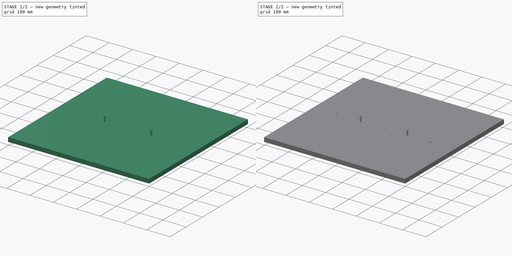
[diagram: build sequence overview — one tinted view per stage of 2, left to right]
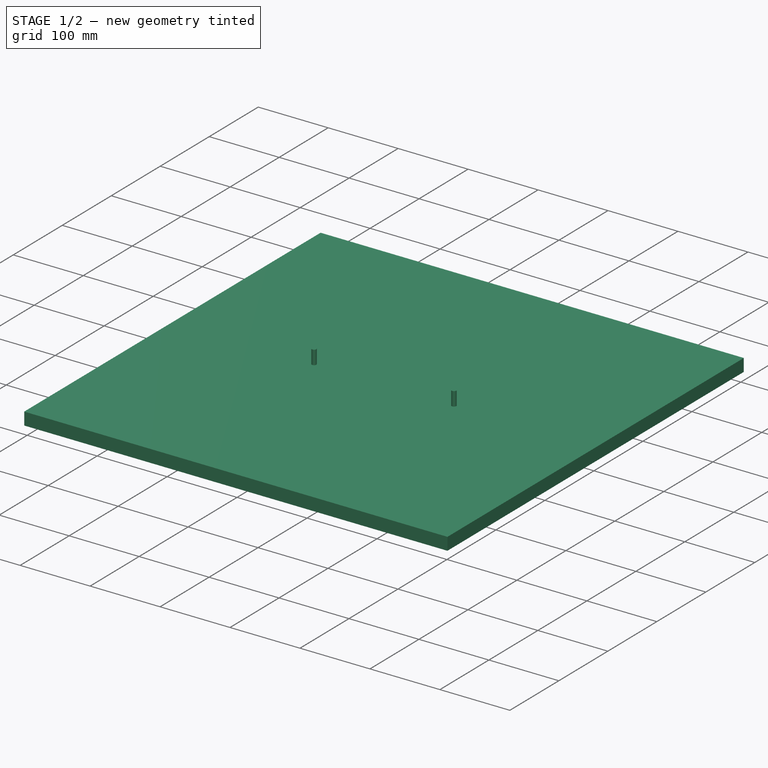
[diagram: stage 1 of 2 — iso view after this stage's code; geometry added in this stage tinted green]
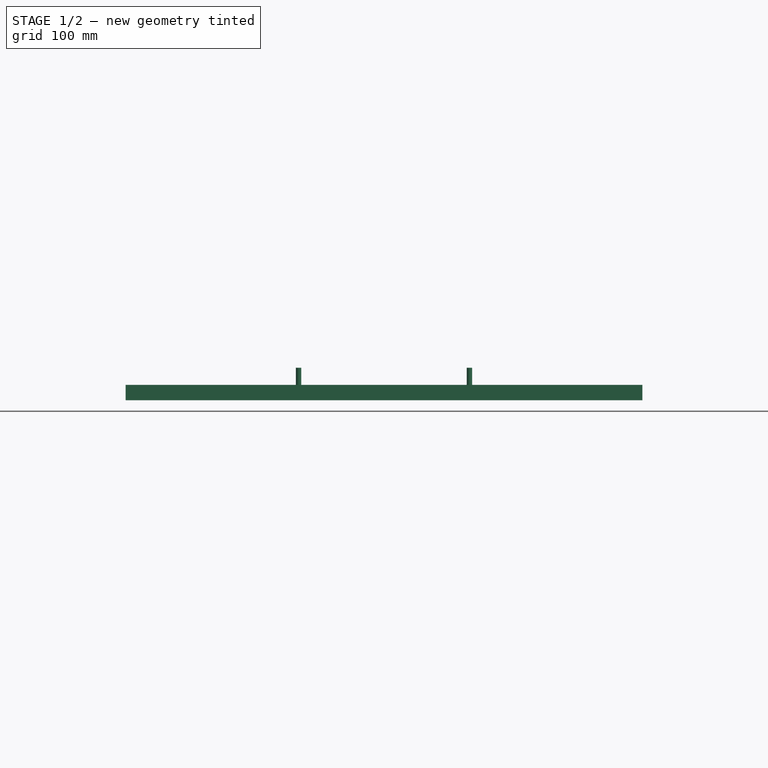
[diagram: stage 1 of 2 — front view after this stage's code; geometry added in this stage tinted green]
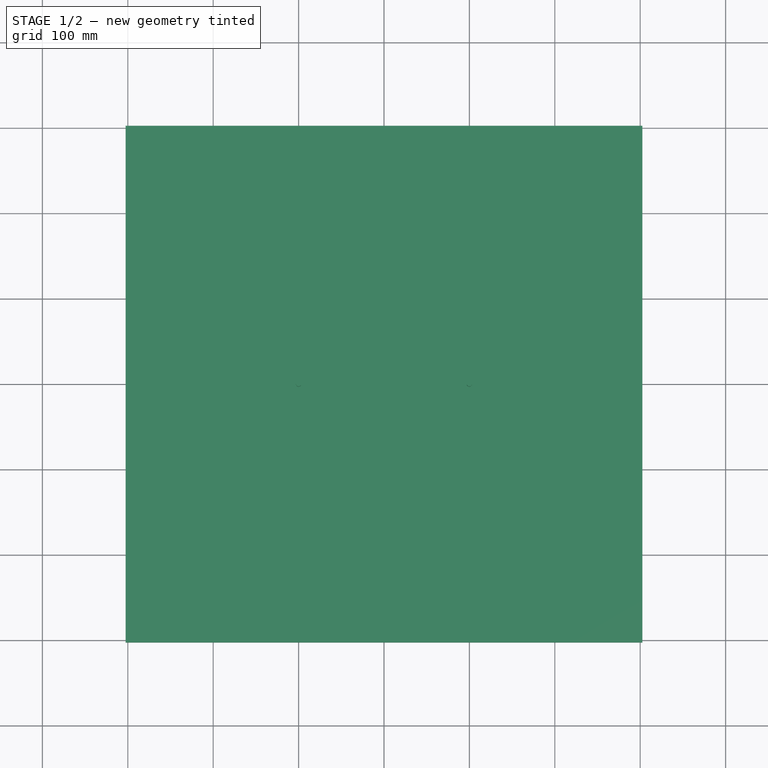
[diagram: stage 1 of 2 — top view after this stage's code; geometry added in this stage tinted green]
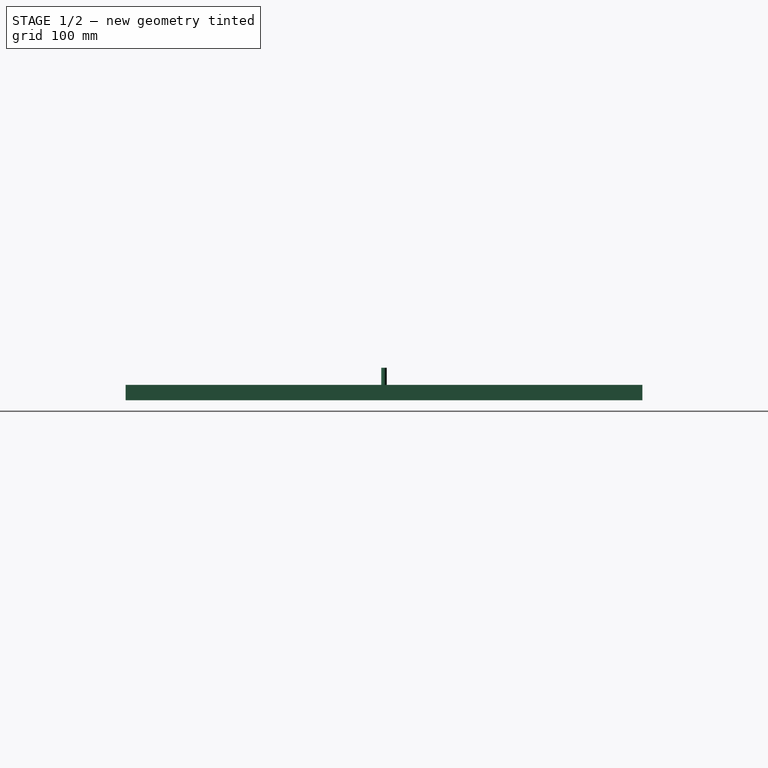
[diagram: stage 1 of 2 — right view after this stage's code; geometry added in this stage tinted green]
FCSTD DOCUMENT  (FreeCAD 1.1R40077 (Git))
Label: Field
License: All rights reserved
LicenseURL: https://en.wikipedia.org/wiki/All_rights_reserved
objects: Sketcher::SketchObject×3, PartDesign::Pad×2, App::Point×1, PartDesign::Pocket×1, PartDesign::Body×1, Measure::MeasureDistance×1
note: 16 computed .brp shape members not serialized (recipe doc carries the construction recipe); baked Part::Feature solids carry a one-line shape summary decoded from their .brp

FEATURE [App::Point] Origin001
  Role = Origin
FEATURE [Sketcher::SketchObject] Sketch
  ArcFitTolerance = 1e-06
  AttachmentSupport = -> [XY_Plane]
  ExternalTypes = [0]
  FullyConstrained = true
  MakeInternals = false
  MapMode = 5
  sketch-geometry (10):
    g0: LineSegment StartX=-302.5 StartY=-302.5 StartZ=0 EndX=302.5 EndY=-302.5 EndZ=0
    g1: LineSegment StartX=302.5 StartY=-302.5 StartZ=0 EndX=302.5 EndY=302.5 EndZ=0
    g2: LineSegment StartX=302.5 StartY=302.5 StartZ=0 EndX=-302.5 EndY=302.5 EndZ=0
    g3: LineSegment StartX=-302.5 StartY=302.5 StartZ=0 EndX=-302.5 EndY=-302.5 EndZ=0
    g4: GeomPoint [constr] X=-8.69e-14 Y=6.09e-14 Z=0
    g5: LineSegment [constr] StartX=-302.5 StartY=1.261e-13 StartZ=0 EndX=302.5 EndY=8.2e-14 EndZ=0
    g6: GeomPoint X=100 Y=1.092e-13 Z=0
    g7: GeomPoint X=200 Y=9.85e-14 Z=0
    g8: GeomPoint X=-100 Y=2e-16 Z=0
    g9: GeomPoint X=-200 Y=1.276e-13 Z=0
  constraints (21):
    c: Coincident(g0,g1)
    c: Coincident(g1,g2)
    c: Coincident(g2,g3)
    c: Coincident(g3,g0)
    c: Horizontal(g0)
    c: Horizontal(g2)
    c: Vertical(g1)
    c: Vertical(g3)
    c: Coincident(g4,g-1)
    c: DistanceX(g0,g0) = 605
    c: Equal(g0,g1)
    c: Symmetric(g1,g0,g4)
    c: PointOnObject(g7,g5)
    c: PointOnObject(g6,g5)
    c: Symmetric(g1,g1,g5)
    c: Symmetric(g3,g3,g5)
    c: PointOnObject(g9,g5)
    c: DistanceX(g8,g6) = 200
    c: DistanceX(g9,g-1) = 200
    c: DistanceX(g4,g7) = 200
    c: Symmetric(g6,g8,g4)
FEATURE [PartDesign::Pad] Pad
  Direction = (0,0,1)
  Length = 18
  Length2 = 10
  Profile = -> Sketch
  ReferenceAxis = -> Sketch [N_Axis]
  Refine = true
  Suppressed = false
  Type = 0
FEATURE [Sketcher::SketchObject] Sketch001
  ArcFitTolerance = 1e-06
  AttachmentSupport = -> [Pad]
  ExternalGeometry = -> [Sketch]
  ExternalTypes = [0,0,0,0]
  FullyConstrained = true
  MakeInternals = false
  MapMode = 5
  Placement = pos=(0,0,18) rot=(0,0,1;0rad)
  sketch-geometry (2):
    g0: Circle CenterX=-100 CenterY=-6.03442e-11 CenterZ=0 NormalX=0 NormalY=0 NormalZ=1 AngleXU=0 Radius=3.175
    g1: Circle CenterX=100 CenterY=-4.44e-14 CenterZ=0 NormalX=0 NormalY=0 NormalZ=1 AngleXU=0 Radius=3.175
  constraints (4):
    c: Diameter(g0) = 6.35
    c: Coincident(g1,g-5)
    c: Equal(g1,g0)
    c: Coincident(g0,g-4)
FEATURE [PartDesign::Pad] Pad001
  BaseFeature = -> Pad
  Direction = (0,0,1)
  Length = 20
  Length2 = 10
  Profile = -> Sketch001
  ReferenceAxis = -> Sketch001 [N_Axis]
  Refine = true
  Suppressed = false
  Type = 0
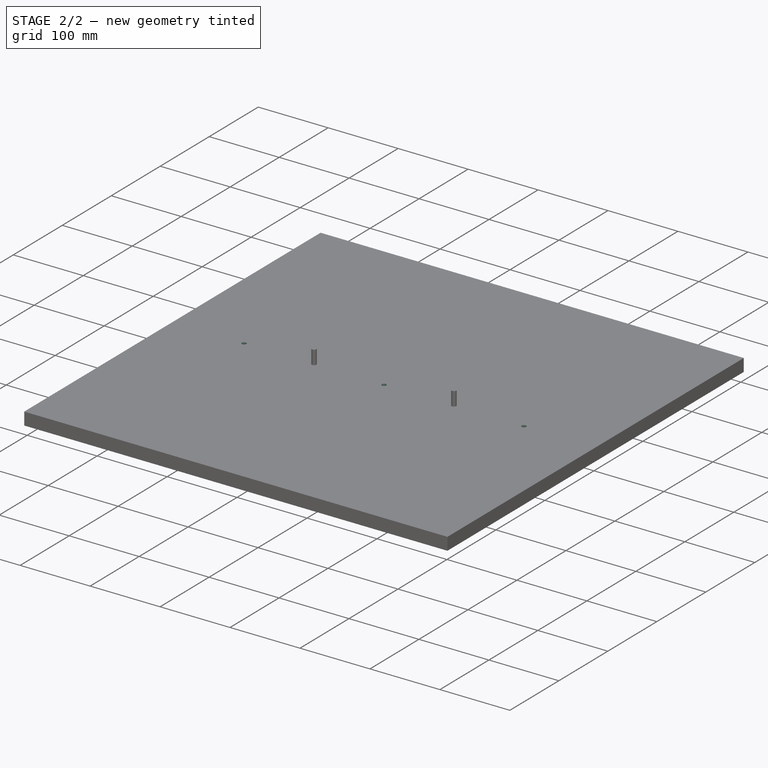
[diagram: stage 2 of 2 — iso view after this stage's code; geometry added in this stage tinted green]
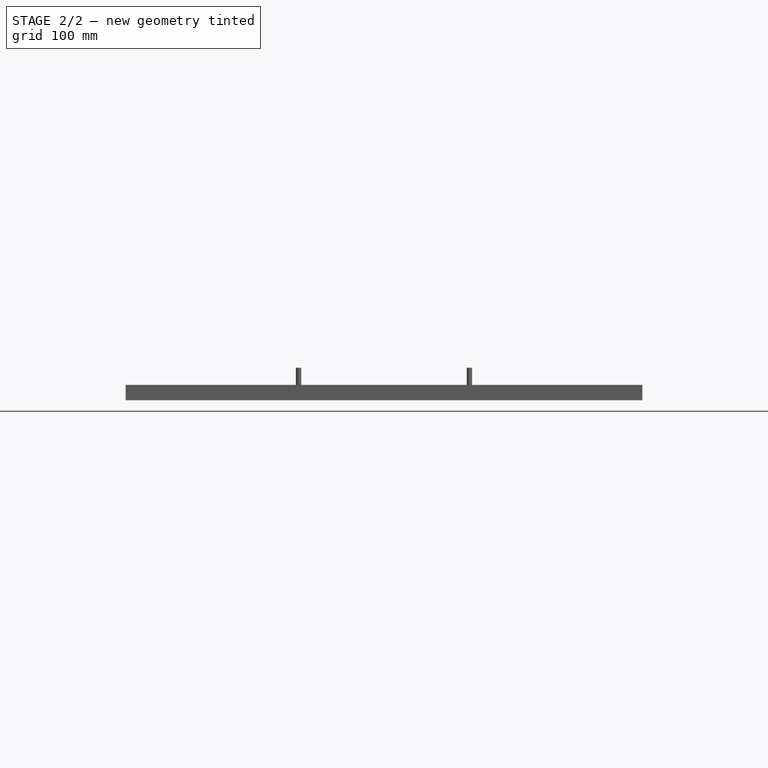
[diagram: stage 2 of 2 — front view after this stage's code; geometry added in this stage tinted green]
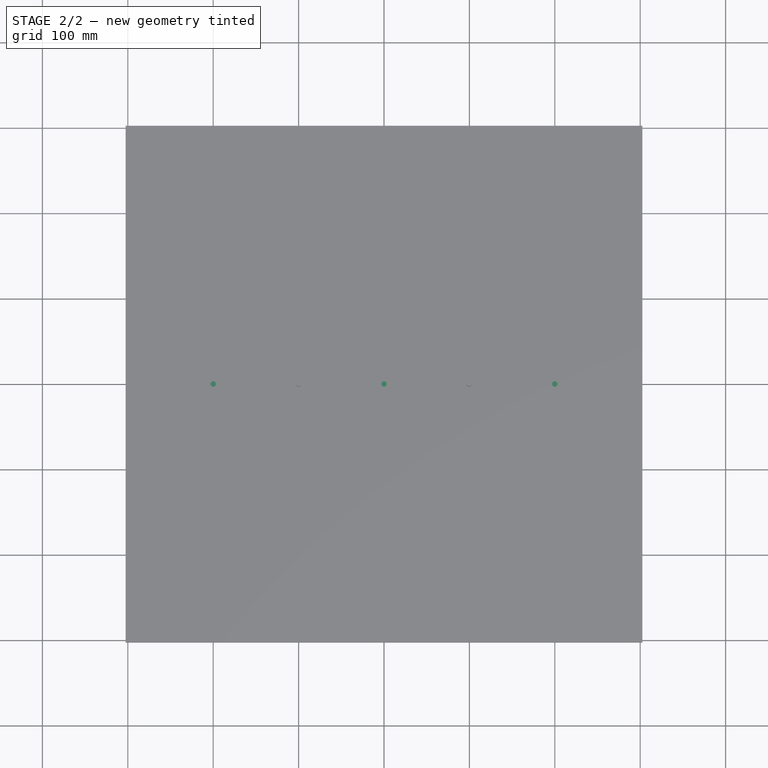
[diagram: stage 2 of 2 — top view after this stage's code; geometry added in this stage tinted green]
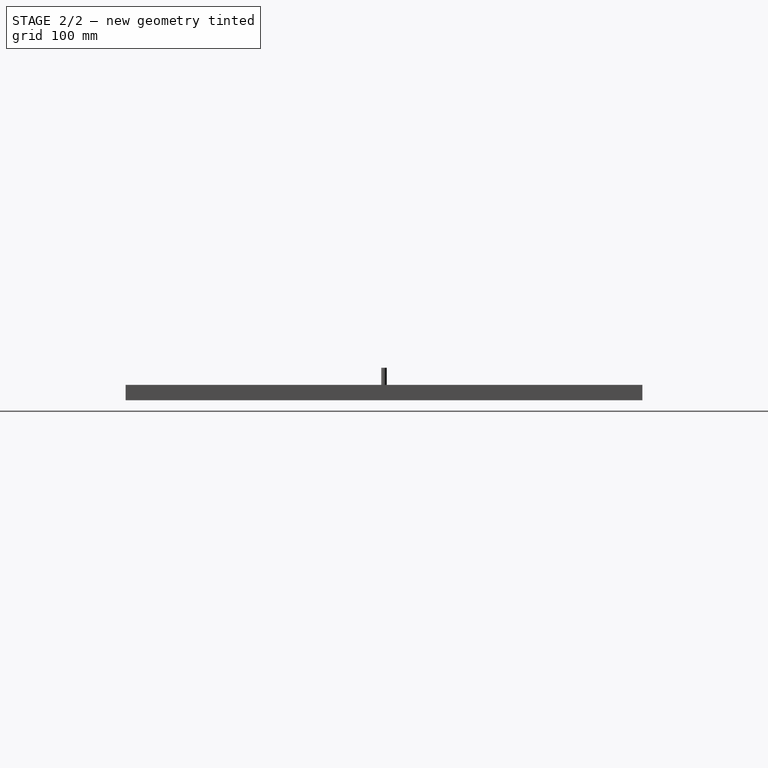
[diagram: stage 2 of 2 — right view after this stage's code; geometry added in this stage tinted green]
FEATURE [Sketcher::SketchObject] Sketch002
  ArcFitTolerance = 1e-06
  AttachmentSupport = -> [Pad001]
  ExternalGeometry = -> [Sketch]
  ExternalTypes = [0,0]
  FullyConstrained = true
  MakeInternals = false
  MapMode = 5
  Placement = pos=(0,0,18) rot=(0,0,1;0rad)
  sketch-geometry (3):
    g0: Circle CenterX=-200 CenterY=1.024e-13 CenterZ=0 NormalX=0 NormalY=0 NormalZ=1 AngleXU=0 Radius=3.175
    g1: Circle CenterX=0 CenterY=0 CenterZ=0 NormalX=0 NormalY=0 NormalZ=1 AngleXU=0 Radius=3.175
    g2: Circle CenterX=200 CenterY=0 CenterZ=0 NormalX=0 NormalY=0 NormalZ=1 AngleXU=0 Radius=3.175
  constraints (6):
    c: Diameter(g0) = 6.35
    c: Coincident(g1,g-1)
    c: Coincident(g2,g-4)
    c: Equal(g1,g2)
    c: Equal(g2,g0)
    c: Coincident(g0,g-3)
FEATURE [PartDesign::Pocket] Pocket
  BaseFeature = -> Pad001
  Direction = (0,0,-1)
  Length = 3
  Length2 = 5
  Profile = -> Sketch002
  ReferenceAxis = -> Sketch002 [N_Axis]
  Refine = true
  Suppressed = false
  Type = 0
FEATURE [PartDesign::Body] Body  label="Field"
  AllowCompound = true
  Group = -> [Sketch,Pad,Sketch001,Pad001,Sketch002,Pocket]
  Origin = -> Origin
  Tip = -> Pocket
FEATURE [Measure::MeasureDistance] Distance  label="Distance: 20.0000 mm"
  Distance = 20
  DistanceX = 0
  DistanceY = 0
  DistanceZ = 20
  Element1 = -> Body [Pocket.Edge19]
  Element2 = -> Body [Pocket.Face5]
  Position1 = (-96.825,-6.0344e-11,38)
  Position2 = (-96.825,-6.0344e-11,18)
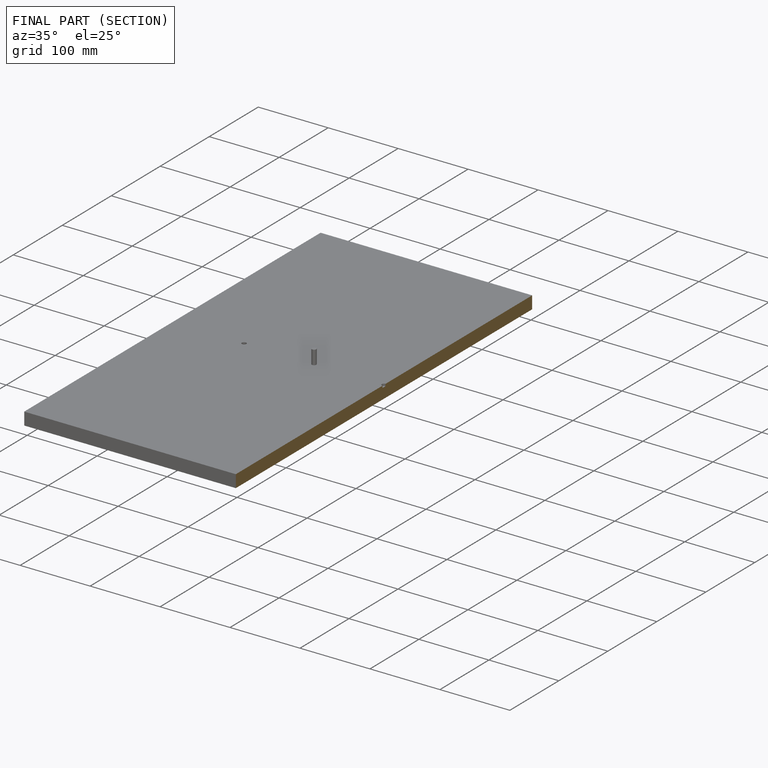
[diagram: finished part — half-section view (interior)]
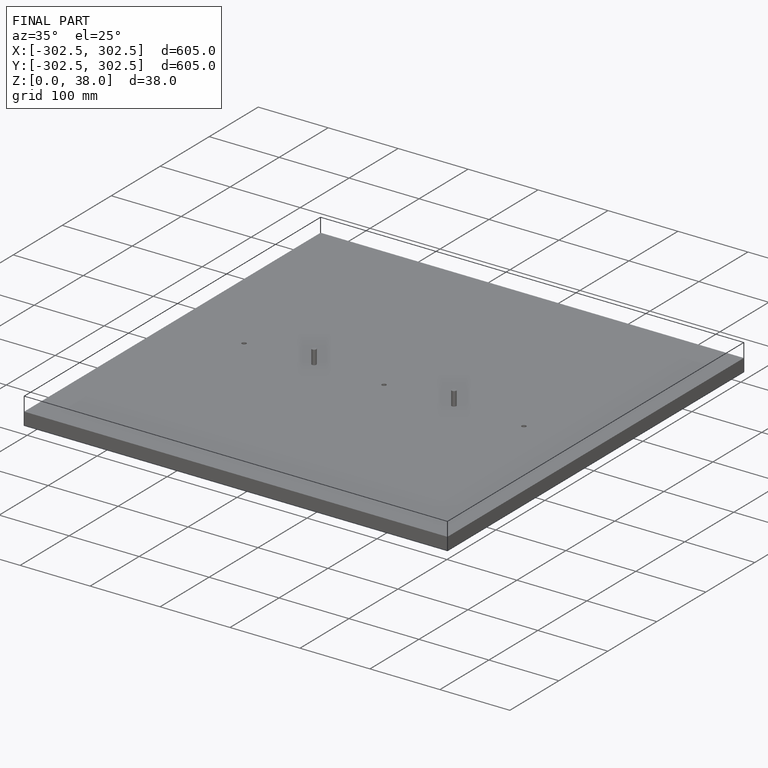
[diagram: finished part — iso view with bounding-box wireframe]
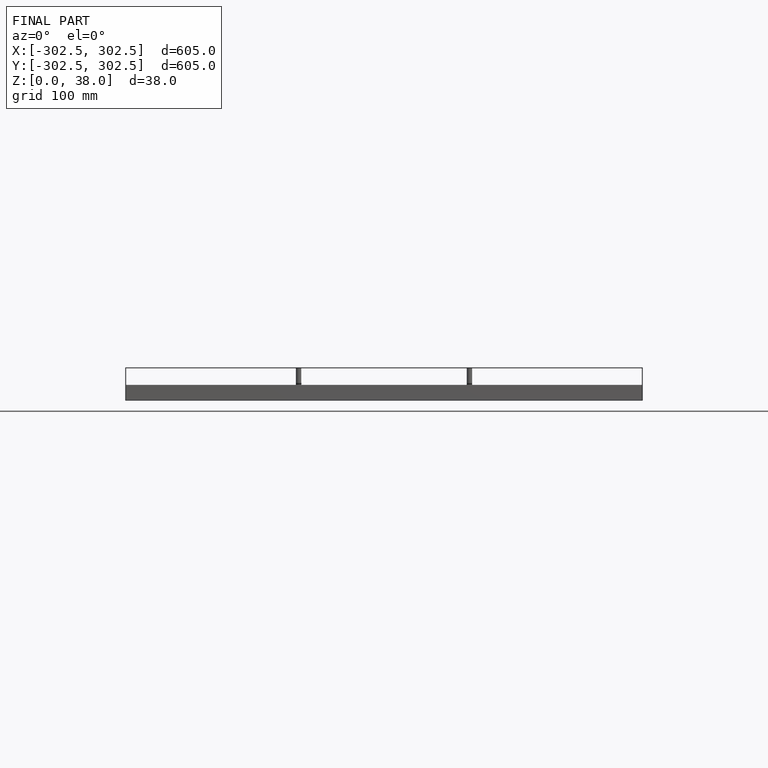
[diagram: finished part — front view with bounding-box wireframe]
